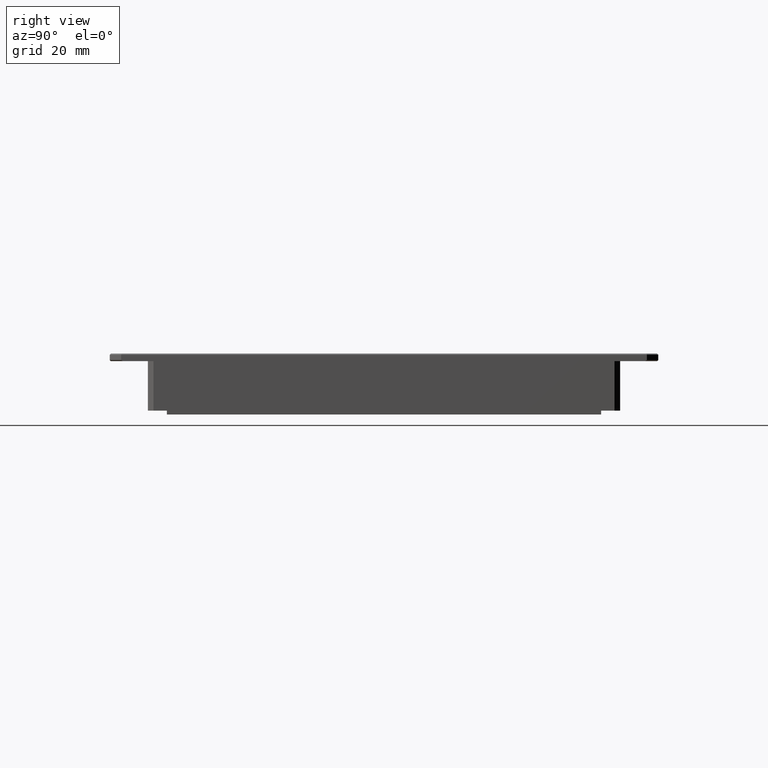
[diagram: clean part render]
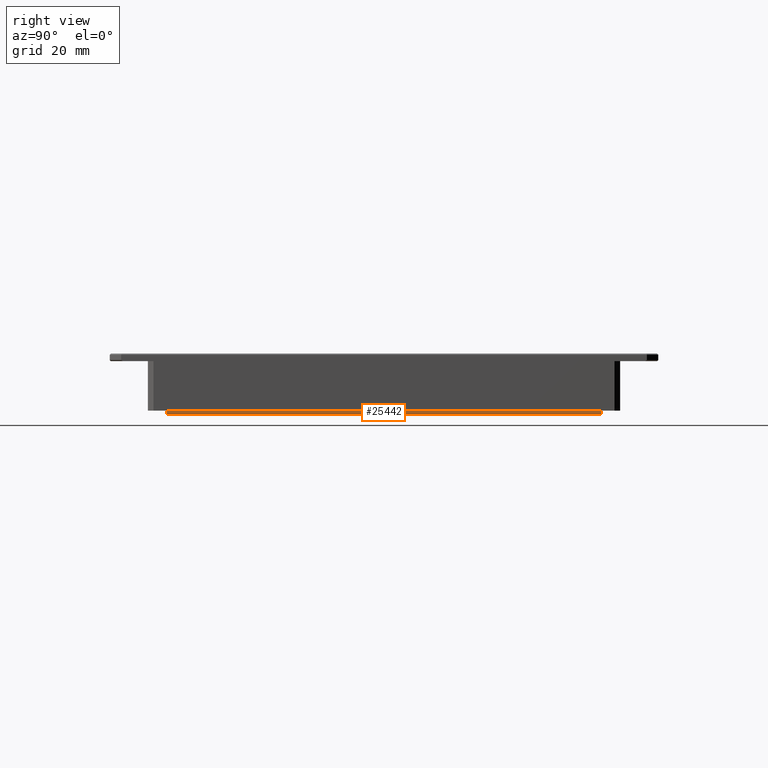
[diagram: same view with one face highlighted and labeled with its STEP entity id]
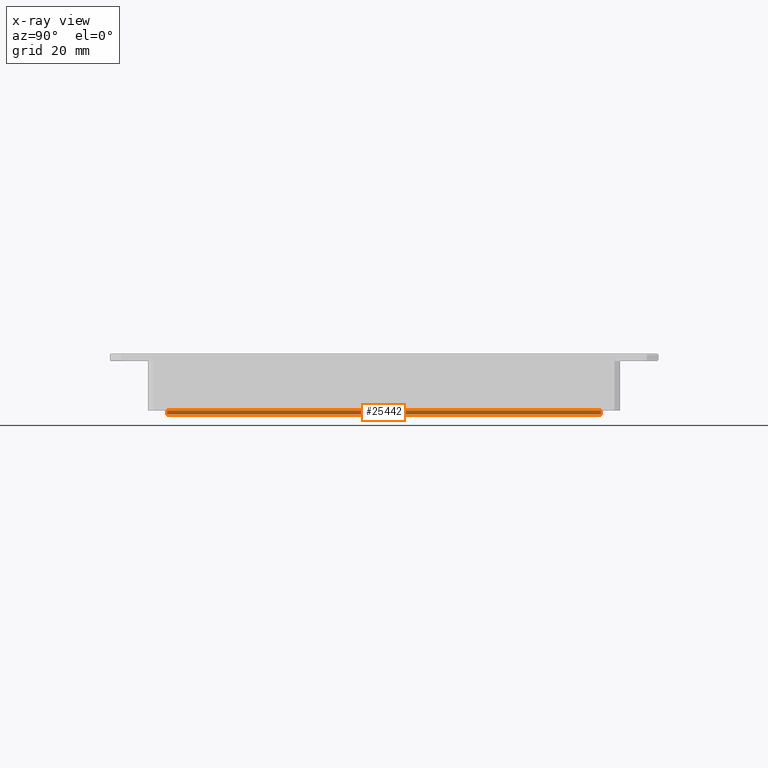
[diagram: x-ray of the same camera — body ghosted, the highlighted face saturated]
A machine part, right view. The second image highlights one B-rep face of the part: STEP entity #25442.
The next image is the same camera in x-ray: the body ghosted, the highlighted face saturated — about 0% of this face is hidden behind the body in this view.
In plain terms, the highlighted planar face has unit normal (-1, 0, 0).
Its self-contained STEP definition (entity closure, byte-faithful):
#2404 = DIRECTION ( 'NONE',  ( -0.0000000000000000000, -0.0000000000000000000, 1.000000000000000000 ) ) ;
#2889 = VECTOR ( 'NONE', #27971, 1000.000000000000000 ) ;
#6916 = CARTESIAN_POINT ( 'NONE',  ( 60.00000000000002100, -46.11034746086290400, -3.000000000016370500 ) ) ;
#11600 = CARTESIAN_POINT ( 'NONE',  ( 60.00000000000002800, 67.88965253913707400, -3.000000000016370500 ) ) ;
#11911 = DIRECTION ( 'NONE',  ( 0.0000000000000000000, -1.000000000000000000, 0.0000000000000000000 ) ) ;
#13976 = LINE ( 'NONE', #20909, #2889 ) ;
#14289 = FACE_OUTER_BOUND ( 'NONE', #28520, .T. ) ;
#15609 = LINE ( 'NONE', #21271, #88509 ) ;
#20870 = CARTESIAN_POINT ( 'NONE',  ( 60.00000000000002100, -46.11034746086289700, -2.000000000016370500 ) ) ;
#20909 = CARTESIAN_POINT ( 'NONE',  ( 60.00000000000002100, -46.11034746086290400, -3.000000000016370500 ) ) ;
#21271 = CARTESIAN_POINT ( 'NONE',  ( 60.00000000000002800, 67.88965253913707400, -3.000000000016370500 ) ) ;
#21647 = LINE ( 'NONE', #11600, #42661 ) ;
#21832 = DIRECTION ( 'NONE',  ( -1.217349807703022600E-016, -1.000000000000000000, 0.0000000000000000000 ) ) ;
#22399 = VERTEX_POINT ( 'NONE', #64924 ) ;
#23405 = VERTEX_POINT ( 'NONE', #20870 ) ;
#25442 = ADVANCED_FACE ( 'NONE', ( #14289 ), #72429, .F. ) ;
#27971 = DIRECTION ( 'NONE',  ( -0.0000000000000000000, -0.0000000000000000000, 1.000000000000000000 ) ) ;
#28520 = EDGE_LOOP ( 'NONE', ( #78525, #57168, #45194, #64437 ) ) ;
#31236 = DIRECTION ( 'NONE',  ( -1.217349807703022600E-016, -1.000000000000000000, 0.0000000000000000000 ) ) ;
#33970 = AXIS2_PLACEMENT_3D ( 'NONE', #71205, #85398, #21832 ) ;
#42262 = EDGE_CURVE ( 'NONE', #50100, #47565, #21647, .T. ) ;
#42661 = VECTOR ( 'NONE', #11911, 1000.000000000000000 ) ;
#42976 = VECTOR ( 'NONE', #31236, 1000.000000000000000 ) ;
#44050 = LINE ( 'NONE', #66487, #42976 ) ;
#45194 = ORIENTED_EDGE ( 'NONE', *, *, #42262, .F. ) ;
#47565 = VERTEX_POINT ( 'NONE', #6916 ) ;
#48751 = EDGE_CURVE ( 'NONE', #47565, #23405, #13976, .T. ) ;
#50100 = VERTEX_POINT ( 'NONE', #68989 ) ;
#57168 = ORIENTED_EDGE ( 'NONE', *, *, #48751, .F. ) ;
#64437 = ORIENTED_EDGE ( 'NONE', *, *, #69962, .T. ) ;
#64924 = CARTESIAN_POINT ( 'NONE',  ( 60.00000000000003600, 67.88965253913707400, -2.000000000016370500 ) ) ;
#66487 = CARTESIAN_POINT ( 'NONE',  ( 60.00000000000002800, 10.88965253913709600, -2.000000000016370500 ) ) ;
#68989 = CARTESIAN_POINT ( 'NONE',  ( 60.00000000000002800, 67.88965253913707400, -3.000000000016370500 ) ) ;
#69962 = EDGE_CURVE ( 'NONE', #50100, #22399, #15609, .T. ) ;
#71205 = CARTESIAN_POINT ( 'NONE',  ( 60.00000000000002800, 10.88965253913709600, -3.000000000016370500 ) ) ;
#72429 = PLANE ( 'NONE',  #33970 ) ;
#77689 = EDGE_CURVE ( 'NONE', #22399, #23405, #44050, .T. ) ;
#78525 = ORIENTED_EDGE ( 'NONE', *, *, #77689, .T. ) ;
#85398 = DIRECTION ( 'NONE',  ( -1.000000000000000000, 1.217349807703022600E-016, 0.0000000000000000000 ) ) ;
#88509 = VECTOR ( 'NONE', #2404, 1000.000000000000000 ) ;